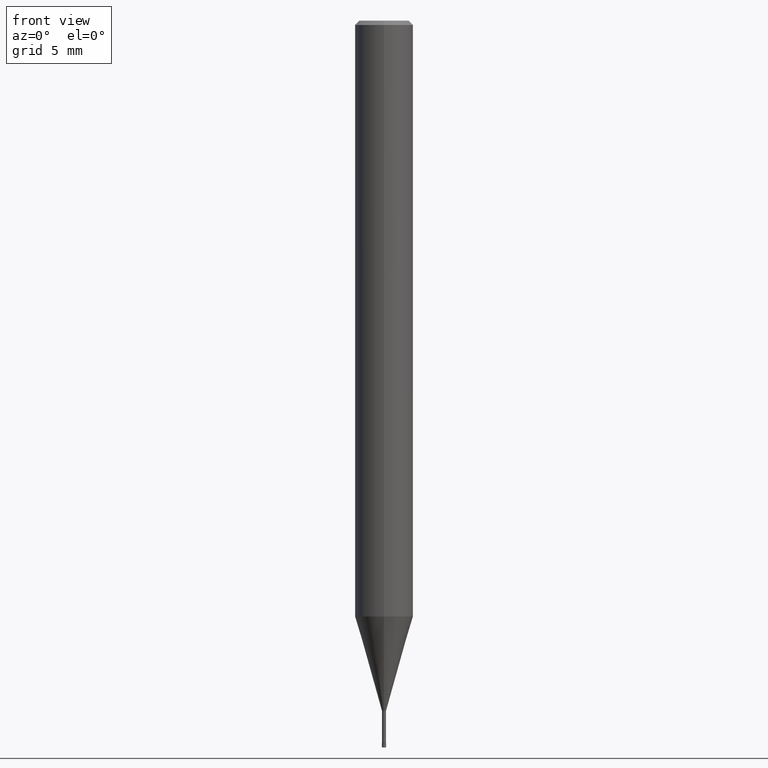
[diagram: clean part render]
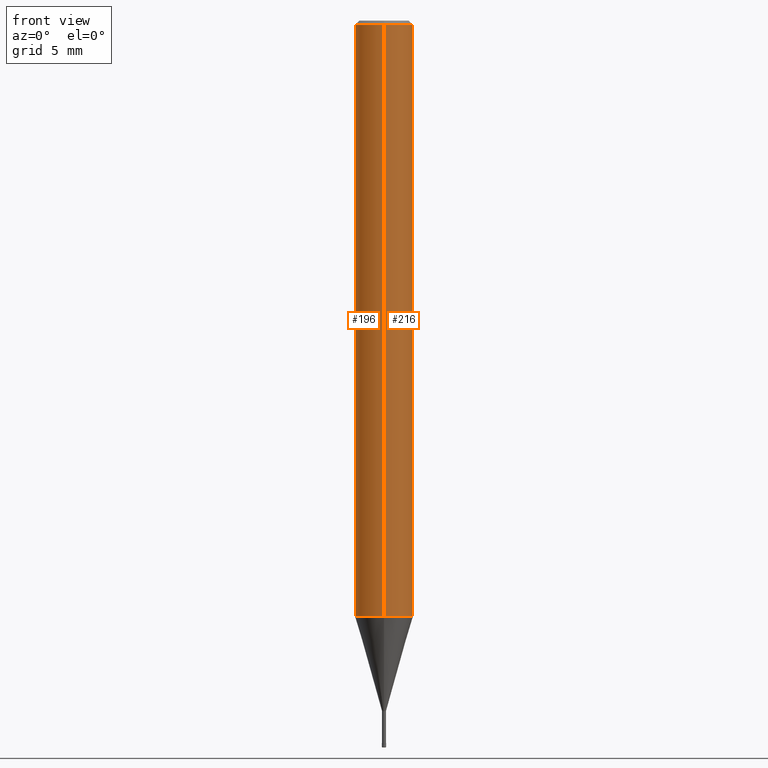
[diagram: same view with one multi-face feature highlighted, each face labeled with its STEP entity id]
A machine part, front view. The highlighted faces form ONE feature: a constant-radius fillet chain: 2 tangent blend faces with common blend radius 2 mm. The faces share edges in the B-rep.
Their STEP definitions:
[1] entity #216 (Cylinder):
#102=VERTEX_POINT('',#256);
#124=EDGE_CURVE('',#210,#190,#281,.T.);
#126=EDGE_CURVE('',#190,#178,#283,.T.);
#148=EDGE_CURVE('',#210,#102,#307,.T.);
#178=VERTEX_POINT('',#344);
#190=VERTEX_POINT('',#357);
#210=VERTEX_POINT('',#378);
#216=ADVANCED_FACE('',(#385),#386,.T.);
#232=EDGE_CURVE('',#178,#102,#403,.T.);
#256=CARTESIAN_POINT('',(2.44921270764475E-016,-2.0,-0.299999999999997));
#281=LINE('',#449,#450);
#283=CIRCLE('',#453,2.0);
#307=CIRCLE('',#484,2.0);
#344=CARTESIAN_POINT('',(2.44921270764475E-016,-2.0,-40.996));
#357=CARTESIAN_POINT('',(0.0,2.0,-40.996));
#378=CARTESIAN_POINT('',(0.0,2.0,-0.299999999999997));
#385=FACE_OUTER_BOUND('',#579,.T.);
#386=CYLINDRICAL_SURFACE('',#580,2.0);
#403=LINE('',#603,#604);
#449=CARTESIAN_POINT('',(-2.44921270764475E-016,2.0,-20.648));
#450=VECTOR('',#645,1.0);
#453=AXIS2_PLACEMENT_3D('',#646,#647,#648);
#484=AXIS2_PLACEMENT_3D('',#673,#674,#675);
#579=EDGE_LOOP('',(#780,#781,#782,#783));
#580=AXIS2_PLACEMENT_3D('',#784,#785,#786);
#603=CARTESIAN_POINT('',(2.44921270764475E-016,-2.0,-20.648));
#604=VECTOR('',#805,1.0);
#645=DIRECTION('',(0.0,0.0,-1.0));
#646=CARTESIAN_POINT('',(0.0,0.0,-40.996));
#647=DIRECTION('',(0.0,0.0,-1.0));
#648=DIRECTION('',(0.0,1.0,0.0));
#673=CARTESIAN_POINT('',(0.0,0.0,-0.299999999999997));
#674=DIRECTION('',(0.0,0.0,-1.0));
#675=DIRECTION('',(0.0,1.0,0.0));
#780=ORIENTED_EDGE('',*,*,#124,.F.);
#781=ORIENTED_EDGE('',*,*,#148,.T.);
#782=ORIENTED_EDGE('',*,*,#232,.F.);
#783=ORIENTED_EDGE('',*,*,#126,.F.);
#784=CARTESIAN_POINT('',(0.0,0.0,-20.648));
#785=DIRECTION('',(-0.0,-0.0,1.0));
#786=DIRECTION('',(0.0,1.0,0.0));
#805=DIRECTION('',(-0.0,-0.0,1.0));
[2] entity #196 (Cylinder):
#102=VERTEX_POINT('',#256);
#124=EDGE_CURVE('',#210,#190,#281,.T.);
#136=EDGE_CURVE('',#102,#210,#294,.T.);
#178=VERTEX_POINT('',#344);
#190=VERTEX_POINT('',#357);
#196=ADVANCED_FACE('',(#363),#364,.T.);
#200=EDGE_CURVE('',#178,#190,#368,.T.);
#210=VERTEX_POINT('',#378);
#232=EDGE_CURVE('',#178,#102,#403,.T.);
#256=CARTESIAN_POINT('',(2.44921270764475E-016,-2.0,-0.299999999999997));
#281=LINE('',#449,#450);
#294=CIRCLE('',#468,2.0);
#344=CARTESIAN_POINT('',(2.44921270764475E-016,-2.0,-40.996));
#357=CARTESIAN_POINT('',(0.0,2.0,-40.996));
#363=FACE_OUTER_BOUND('',#550,.T.);
#364=CYLINDRICAL_SURFACE('',#551,2.0);
#368=CIRCLE('',#556,2.0);
#378=CARTESIAN_POINT('',(0.0,2.0,-0.299999999999997));
#403=LINE('',#603,#604);
#449=CARTESIAN_POINT('',(-2.44921270764475E-016,2.0,-20.648));
#450=VECTOR('',#645,1.0);
#468=AXIS2_PLACEMENT_3D('',#661,#662,#663);
#550=EDGE_LOOP('',(#755,#756,#757,#758));
#551=AXIS2_PLACEMENT_3D('',#759,#760,#761);
#556=AXIS2_PLACEMENT_3D('',#762,#763,#764);
#603=CARTESIAN_POINT('',(2.44921270764475E-016,-2.0,-20.648));
#604=VECTOR('',#805,1.0);
#645=DIRECTION('',(0.0,0.0,-1.0));
#661=CARTESIAN_POINT('',(0.0,0.0,-0.299999999999997));
#662=DIRECTION('',(0.0,0.0,-1.0));
#663=DIRECTION('',(0.0,1.0,0.0));
#755=ORIENTED_EDGE('',*,*,#124,.T.);
#756=ORIENTED_EDGE('',*,*,#200,.F.);
#757=ORIENTED_EDGE('',*,*,#232,.T.);
#758=ORIENTED_EDGE('',*,*,#136,.T.);
#759=CARTESIAN_POINT('',(0.0,0.0,-20.648));
#760=DIRECTION('',(-0.0,-0.0,1.0));
#761=DIRECTION('',(0.0,1.0,0.0));
#762=CARTESIAN_POINT('',(0.0,0.0,-40.996));
#763=DIRECTION('',(0.0,0.0,-1.0));
#764=DIRECTION('',(0.0,1.0,0.0));
#805=DIRECTION('',(-0.0,-0.0,1.0));